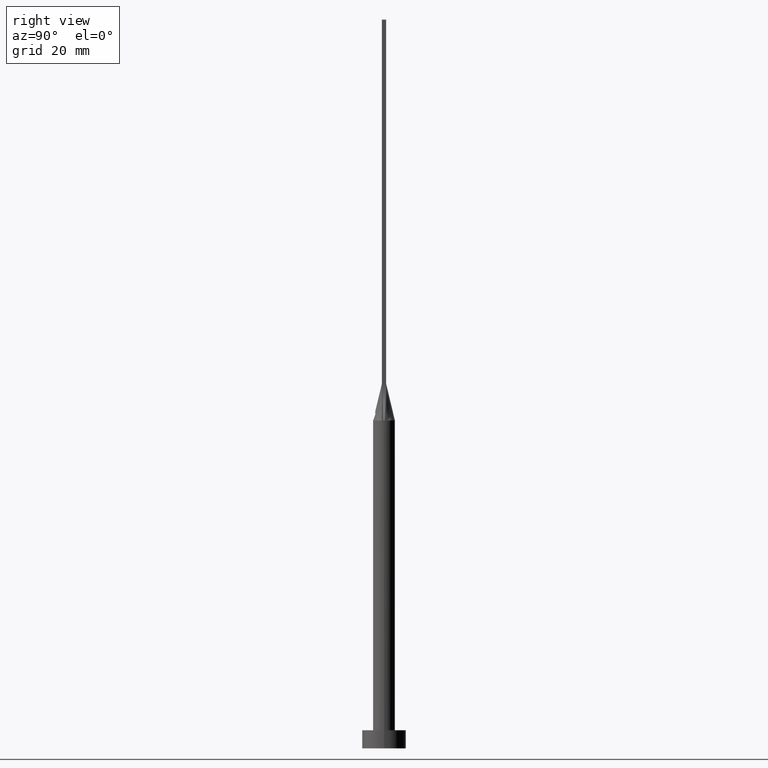
[diagram: clean part render]
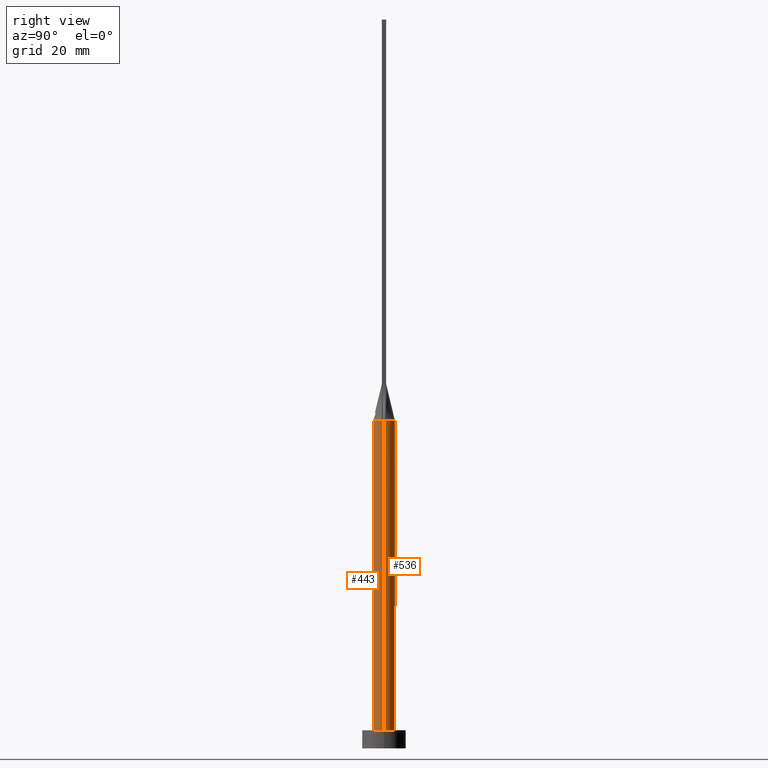
[diagram: same view with one multi-face feature highlighted, each face labeled with its STEP entity id]
A machine part, right view. The highlighted faces form ONE feature: a constant-radius fillet chain: 2 tangent blend faces with common blend radius 3 mm. The faces share edges in the B-rep.
Their STEP definitions:
[1] entity #536 (Cylinder):
#12 = CARTESIAN_POINT ( 'NONE',  ( 0.000000000000000000, 0.000000000000000000, 5.000000000000000000 ) ) ;
#23 = DIRECTION ( 'NONE',  ( 0.000000000000000000, 0.000000000000000000, 1.000000000000000000 ) ) ;
#25 = DIRECTION ( 'NONE',  ( 0.000000000000000000, 0.000000000000000000, 1.000000000000000000 ) ) ;
#27 = CARTESIAN_POINT ( 'NONE',  ( 1.829136458871247761, 2.402980488111650992, 89.99999999999997158 ) ) ;
#29 = CARTESIAN_POINT ( 'NONE',  ( -2.792624347712117761, 1.135030881087315313, 90.00000000000001421 ) ) ;
#35 = CARTESIAN_POINT ( 'NONE',  ( 2.518011668798964209, 1.657305971825549840, 90.00000000000001421 ) ) ;
#50 = DIRECTION ( 'NONE',  ( -0.000000000000000000, -0.000000000000000000, -1.000000000000000000 ) ) ;
#52 = CARTESIAN_POINT ( 'NONE',  ( 3.000000000000000444, 3.673940397442060361E-16, 90.00000000000001421 ) ) ;
#58 = VERTEX_POINT ( 'NONE', #351 ) ;
#74 = CARTESIAN_POINT ( 'NONE',  ( -2.328745122427008152, 1.922758842442225280, 89.99999999999997158 ) ) ;
#79 = ORIENTED_EDGE ( 'NONE', *, *, #417, .F. ) ;
#88 = VERTEX_POINT ( 'NONE', #565 ) ;
#106 = FACE_OUTER_BOUND ( 'NONE', #418, .T. ) ;
#107 = CIRCLE ( 'NONE', #551, 3.000000000000000444 ) ;
#114 = ORIENTED_EDGE ( 'NONE', *, *, #566, .T. ) ;
#117 = CARTESIAN_POINT ( 'NONE',  ( -1.517787371616671654, 2.616501225271827380, 90.00000000000004263 ) ) ;
#133 = ORIENTED_EDGE ( 'NONE', *, *, #196, .F. ) ;
#134 = CYLINDRICAL_SURFACE ( 'NONE', #334, 3.000000000000000444 ) ;
#141 = CARTESIAN_POINT ( 'NONE',  ( 0.000000000000000000, 0.000000000000000000, 90.00000000000001421 ) ) ;
#189 = CARTESIAN_POINT ( 'NONE',  ( -0.4026715616377299356, 2.999999999999999556, 89.99999999999998579 ) ) ;
#196 = EDGE_CURVE ( 'NONE', #245, #393, #280, .T. ) ;
#198 = VERTEX_POINT ( 'NONE', #508 ) ;
#217 = ORIENTED_EDGE ( 'NONE', *, *, #263, .F. ) ;
#222 = DIRECTION ( 'NONE',  ( -1.000000000000000000, 0.000000000000000000, 0.000000000000000000 ) ) ;
#245 = VERTEX_POINT ( 'NONE', #479 ) ;
#247 = DIRECTION ( 'NONE',  ( 0.000000000000000000, 0.000000000000000000, 1.000000000000000000 ) ) ;
#249 = CARTESIAN_POINT ( 'NONE',  ( -2.931320679040856803, 0.6395611071856786012, 90.00000000000001421 ) ) ;
#259 = CARTESIAN_POINT ( 'NONE',  ( 0.000000000000000000, 0.000000000000000000, 90.00000000000001421 ) ) ;
#263 = EDGE_CURVE ( 'NONE', #198, #88, #438, .T. ) ;
#272 = CARTESIAN_POINT ( 'NONE',  ( 0.000000000000000000, 0.000000000000000000, 90.00000000000001421 ) ) ;
#277 = VECTOR ( 'NONE', #50, 1000.000000000000000 ) ;
#280 = B_SPLINE_CURVE_WITH_KNOTS ( 'NONE', 3,
 ( #333, #511, #411, #35, #561, #27, #292, #286, #380, #189, #464, #117, #339, #74, #291, #29, #462, #249 ),
 .UNSPECIFIED., .F., .F.,
 ( 4, 2, 2, 2, 2, 2, 2, 2, 4 ),
 ( 0.000000000000000000, 0.1250000000000000000, 0.2500000000000000000, 0.3750000000000000000, 0.5000000000000000000, 0.6250000000000000000, 0.7500000000000000000, 0.8750000000000000000, 1.000000000000000000 ),
 .UNSPECIFIED. ) ;
#286 = CARTESIAN_POINT ( 'NONE',  ( 0.8041209001220689379, 2.916015559847871863, 90.00000000000004263 ) ) ;
#291 = CARTESIAN_POINT ( 'NONE',  ( -2.518011668798964653, 1.657305971825549840, 90.00000000000002842 ) ) ;
#292 = CARTESIAN_POINT ( 'NONE',  ( 1.517787371616672099, 2.616501225271827824, 90.00000000000004263 ) ) ;
#318 = LINE ( 'NONE', #52, #277 ) ;
#330 = VERTEX_POINT ( 'NONE', #341 ) ;
#333 = CARTESIAN_POINT ( 'NONE',  ( 2.931303352270923757, 0.6395574164693091923, 90.00000000000001421 ) ) ;
#334 = AXIS2_PLACEMENT_3D ( 'NONE', #272, #537, #222 ) ;
#339 = CARTESIAN_POINT ( 'NONE',  ( -1.829136458871247761, 2.402980488111649660, 89.99999999999998579 ) ) ;
#341 = CARTESIAN_POINT ( 'NONE',  ( 3.000000000000000444, 3.673940397442060361E-16, 5.000000000000000000 ) ) ;
#345 = EDGE_CURVE ( 'NONE', #330, #88, #441, .T. ) ;
#351 = CARTESIAN_POINT ( 'NONE',  ( 2.999603793582328759, 7.166726372340513095E-16, 90.00000000000001421 ) ) ;
#370 = ORIENTED_EDGE ( 'NONE', *, *, #345, .T. ) ;
#380 = CARTESIAN_POINT ( 'NONE',  ( 0.4026715616377294915, 2.999999999999999556, 90.00000000000001421 ) ) ;
#393 = VERTEX_POINT ( 'NONE', #485 ) ;
#411 = CARTESIAN_POINT ( 'NONE',  ( 2.792624347712116872, 1.135030881087315979, 90.00000000000001421 ) ) ;
#417 = EDGE_CURVE ( 'NONE', #393, #198, #498, .T. ) ;
#418 = EDGE_LOOP ( 'NONE', ( #449, #114, #370, #217, #79, #133 ) ) ;
#435 = DIRECTION ( 'NONE',  ( -0.000000000000000000, -0.000000000000000000, -1.000000000000000000 ) ) ;
#438 = LINE ( 'NONE', #524, #451 ) ;
#441 = CIRCLE ( 'NONE', #512, 3.000000000000000444 ) ;
#449 = ORIENTED_EDGE ( 'NONE', *, *, #554, .F. ) ;
#451 = VECTOR ( 'NONE', #435, 1000.000000000000000 ) ;
#462 = CARTESIAN_POINT ( 'NONE',  ( -2.878980386154874616, 0.8781411751610629368, 90.00000000000005684 ) ) ;
#464 = CARTESIAN_POINT ( 'NONE',  ( -0.8041209001220690489, 2.916015559847871419, 90.00000000000002842 ) ) ;
#466 = DIRECTION ( 'NONE',  ( 1.000000000000000000, 0.000000000000000000, 0.000000000000000000 ) ) ;
#479 = CARTESIAN_POINT ( 'NONE',  ( 2.931303352270923757, 0.6395574164693091923, 90.00000000000001421 ) ) ;
#485 = CARTESIAN_POINT ( 'NONE',  ( -2.931320679040856803, 0.6395611071856786012, 90.00000000000001421 ) ) ;
#487 = DIRECTION ( 'NONE',  ( 1.000000000000000000, 0.000000000000000000, 0.000000000000000000 ) ) ;
#498 = CIRCLE ( 'NONE', #569, 3.000000000000000444 ) ;
#508 = CARTESIAN_POINT ( 'NONE',  ( -2.999603793582328315, -7.025298958605770567E-16, 90.00000000000001421 ) ) ;
#511 = CARTESIAN_POINT ( 'NONE',  ( 2.878980386154874616, 0.8781411751610636029, 90.00000000000002842 ) ) ;
#512 = AXIS2_PLACEMENT_3D ( 'NONE', #12, #23, #515 ) ;
#515 = DIRECTION ( 'NONE',  ( 1.000000000000000000, 0.000000000000000000, 0.000000000000000000 ) ) ;
#524 = CARTESIAN_POINT ( 'NONE',  ( -3.000000000000000444, 0.000000000000000000, 90.00000000000001421 ) ) ;
#536 = ADVANCED_FACE ( 'NONE', ( #106 ), #134, .T. ) ;
#537 = DIRECTION ( 'NONE',  ( -0.000000000000000000, -0.000000000000000000, -1.000000000000000000 ) ) ;
#551 = AXIS2_PLACEMENT_3D ( 'NONE', #141, #25, #487 ) ;
#554 = EDGE_CURVE ( 'NONE', #58, #245, #107, .T. ) ;
#561 = CARTESIAN_POINT ( 'NONE',  ( 2.328745122427009040, 1.922758842442225946, 90.00000000000000000 ) ) ;
#565 = CARTESIAN_POINT ( 'NONE',  ( -3.000000000000000444, 0.000000000000000000, 5.000000000000000000 ) ) ;
#566 = EDGE_CURVE ( 'NONE', #58, #330, #318, .T. ) ;
#569 = AXIS2_PLACEMENT_3D ( 'NONE', #259, #247, #466 ) ;
[2] entity #443 (Cylinder):
#32 = CYLINDRICAL_SURFACE ( 'NONE', #309, 3.000000000000000444 ) ;
#41 = CARTESIAN_POINT ( 'NONE',  ( 2.931332910560268790, -0.6395638358681950963, 90.00000000000001421 ) ) ;
#48 = CARTESIAN_POINT ( 'NONE',  ( 0.000000000000000000, 0.000000000000000000, 90.00000000000001421 ) ) ;
#50 = DIRECTION ( 'NONE',  ( -0.000000000000000000, -0.000000000000000000, -1.000000000000000000 ) ) ;
#52 = CARTESIAN_POINT ( 'NONE',  ( 3.000000000000000444, 3.673940397442060361E-16, 90.00000000000001421 ) ) ;
#58 = VERTEX_POINT ( 'NONE', #351 ) ;
#62 = VERTEX_POINT ( 'NONE', #41 ) ;
#72 = EDGE_LOOP ( 'NONE', ( #91, #533, #155, #402, #454, #118 ) ) ;
#83 = DIRECTION ( 'NONE',  ( 0.000000000000000000, 0.000000000000000000, 1.000000000000000000 ) ) ;
#88 = VERTEX_POINT ( 'NONE', #565 ) ;
#91 = ORIENTED_EDGE ( 'NONE', *, *, #566, .F. ) ;
#103 = AXIS2_PLACEMENT_3D ( 'NONE', #112, #154, #145 ) ;
#112 = CARTESIAN_POINT ( 'NONE',  ( 0.000000000000000000, 0.000000000000000000, 90.00000000000001421 ) ) ;
#113 = DIRECTION ( 'NONE',  ( 1.000000000000000000, 0.000000000000000000, 0.000000000000000000 ) ) ;
#118 = ORIENTED_EDGE ( 'NONE', *, *, #227, .T. ) ;
#126 = DIRECTION ( 'NONE',  ( -1.000000000000000000, 0.000000000000000000, 0.000000000000000000 ) ) ;
#145 = DIRECTION ( 'NONE',  ( 1.000000000000000000, -8.881784197001252323E-15, 0.000000000000000000 ) ) ;
#147 = DIRECTION ( 'NONE',  ( 0.000000000000000000, 0.000000000000000000, 1.000000000000000000 ) ) ;
#154 = DIRECTION ( 'NONE',  ( 0.000000000000000000, 0.000000000000000000, 1.000000000000000000 ) ) ;
#155 = ORIENTED_EDGE ( 'NONE', *, *, #282, .F. ) ;
#176 = CARTESIAN_POINT ( 'NONE',  ( 0.000000000000000000, 0.000000000000000000, 90.00000000000001421 ) ) ;
#197 = CARTESIAN_POINT ( 'NONE',  ( 0.000000000000000000, 0.000000000000000000, 5.000000000000000000 ) ) ;
#198 = VERTEX_POINT ( 'NONE', #508 ) ;
#209 = DIRECTION ( 'NONE',  ( 1.000000000000000000, 0.000000000000000000, 0.000000000000000000 ) ) ;
#212 = EDGE_CURVE ( 'NONE', #62, #58, #220, .T. ) ;
#220 = CIRCLE ( 'NONE', #103, 3.000000000000000444 ) ;
#227 = EDGE_CURVE ( 'NONE', #88, #330, #547, .T. ) ;
#241 = AXIS2_PLACEMENT_3D ( 'NONE', #48, #578, #387 ) ;
#263 = EDGE_CURVE ( 'NONE', #198, #88, #438, .T. ) ;
#276 = CIRCLE ( 'NONE', #241, 3.000000000000000444 ) ;
#277 = VECTOR ( 'NONE', #50, 1000.000000000000000 ) ;
#282 = EDGE_CURVE ( 'NONE', #507, #62, #276, .T. ) ;
#289 = FACE_OUTER_BOUND ( 'NONE', #72, .T. ) ;
#294 = AXIS2_PLACEMENT_3D ( 'NONE', #197, #147, #113 ) ;
#299 = EDGE_CURVE ( 'NONE', #198, #507, #373, .T. ) ;
#309 = AXIS2_PLACEMENT_3D ( 'NONE', #523, #378, #126 ) ;
#318 = LINE ( 'NONE', #52, #277 ) ;
#330 = VERTEX_POINT ( 'NONE', #341 ) ;
#341 = CARTESIAN_POINT ( 'NONE',  ( 3.000000000000000444, 3.673940397442060361E-16, 5.000000000000000000 ) ) ;
#351 = CARTESIAN_POINT ( 'NONE',  ( 2.999603793582328759, 7.166726372340513095E-16, 90.00000000000001421 ) ) ;
#373 = CIRCLE ( 'NONE', #550, 3.000000000000000444 ) ;
#378 = DIRECTION ( 'NONE',  ( -0.000000000000000000, -0.000000000000000000, -1.000000000000000000 ) ) ;
#387 = DIRECTION ( 'NONE',  ( 1.000000000000000000, 0.000000000000000000, 0.000000000000000000 ) ) ;
#402 = ORIENTED_EDGE ( 'NONE', *, *, #299, .F. ) ;
#435 = DIRECTION ( 'NONE',  ( -0.000000000000000000, -0.000000000000000000, -1.000000000000000000 ) ) ;
#438 = LINE ( 'NONE', #524, #451 ) ;
#443 = ADVANCED_FACE ( 'NONE', ( #289 ), #32, .T. ) ;
#451 = VECTOR ( 'NONE', #435, 1000.000000000000000 ) ;
#454 = ORIENTED_EDGE ( 'NONE', *, *, #263, .T. ) ;
#463 = CARTESIAN_POINT ( 'NONE',  ( -2.931315536094174057, -0.6395601373676296220, 90.00000000000001421 ) ) ;
#507 = VERTEX_POINT ( 'NONE', #463 ) ;
#508 = CARTESIAN_POINT ( 'NONE',  ( -2.999603793582328315, -7.025298958605770567E-16, 90.00000000000001421 ) ) ;
#523 = CARTESIAN_POINT ( 'NONE',  ( 0.000000000000000000, 0.000000000000000000, 90.00000000000001421 ) ) ;
#524 = CARTESIAN_POINT ( 'NONE',  ( -3.000000000000000444, 0.000000000000000000, 90.00000000000001421 ) ) ;
#533 = ORIENTED_EDGE ( 'NONE', *, *, #212, .F. ) ;
#547 = CIRCLE ( 'NONE', #294, 3.000000000000000444 ) ;
#550 = AXIS2_PLACEMENT_3D ( 'NONE', #176, #83, #209 ) ;
#565 = CARTESIAN_POINT ( 'NONE',  ( -3.000000000000000444, 0.000000000000000000, 5.000000000000000000 ) ) ;
#566 = EDGE_CURVE ( 'NONE', #58, #330, #318, .T. ) ;
#578 = DIRECTION ( 'NONE',  ( 0.000000000000000000, 0.000000000000000000, 1.000000000000000000 ) ) ;